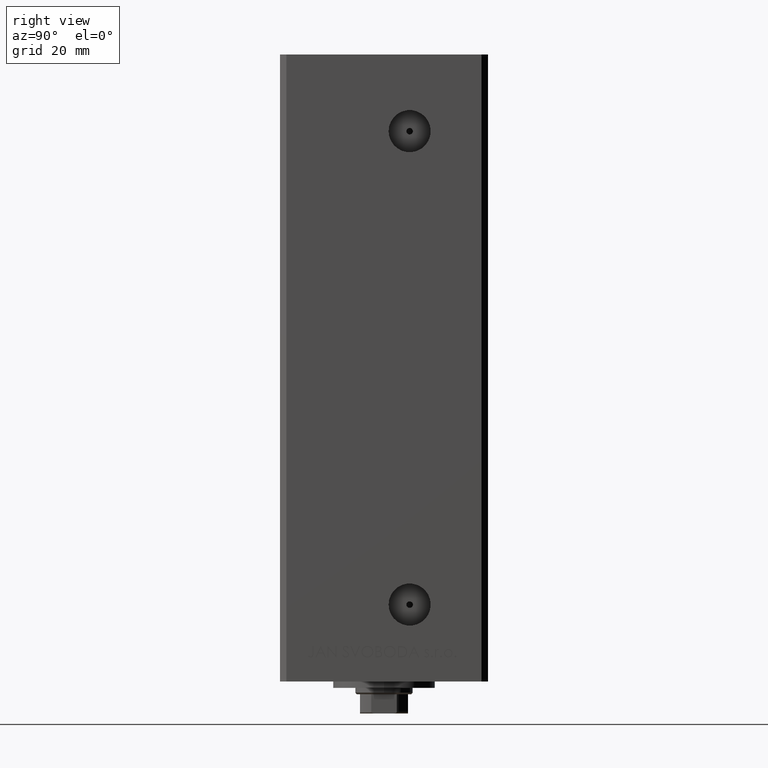
[diagram: clean part render]
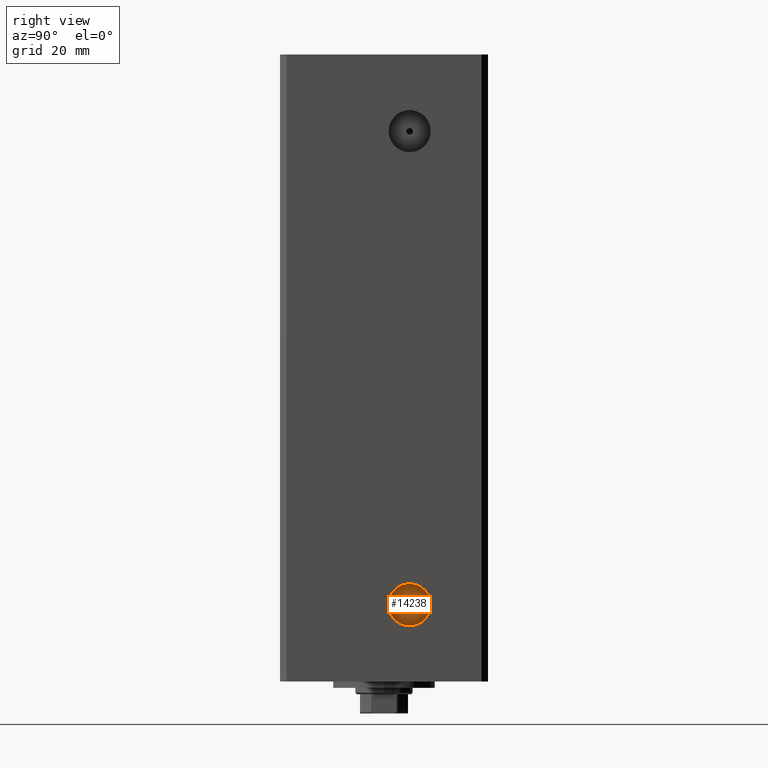
[diagram: same view with one face highlighted and labeled with its STEP entity id]
A machine part, right view. The second image highlights one B-rep face of the part: STEP entity #14238.
In plain terms, the highlighted planar face has unit normal (1, -0, 0).
Its self-contained STEP definition (entity closure, byte-faithful):
#695 = DIRECTION ( 'NONE',  ( 2.275047181608927644E-16, 1.000000000000000000, 0.000000000000000000 ) ) ;
#925 = ORIENTED_EDGE ( 'NONE', *, *, #30218, .F. ) ;
#1268 = CIRCLE ( 'NONE', #12423, 0.9999999999999991118 ) ;
#3588 = CIRCLE ( 'NONE', #34645, 6.580000000000006288 ) ;
#3818 = CARTESIAN_POINT ( 'NONE',  ( 24.50000000000000000, 7.999999999999994671, 8.999999999999994671 ) ) ;
#4438 = FACE_BOUND ( 'NONE', #41624, .T. ) ;
#5140 = EDGE_CURVE ( 'NONE', #17042, #47565, #3588, .T. ) ;
#5256 = DIRECTION ( 'NONE',  ( 0.000000000000000000, 1.000000000000000000, 0.000000000000000000 ) ) ;
#5563 = ORIENTED_EDGE ( 'NONE', *, *, #7083, .F. ) ;
#6014 = CARTESIAN_POINT ( 'NONE',  ( 24.50000000000000000, 1.419999999999989049, 8.999999999999994671 ) ) ;
#7083 = EDGE_CURVE ( 'NONE', #16908, #16668, #1268, .T. ) ;
#8767 = CARTESIAN_POINT ( 'NONE',  ( 24.50000000000000000, 7.999999999999994671, 8.999999999999994671 ) ) ;
#9008 = DIRECTION ( 'NONE',  ( 1.000000000000000000, -2.275047181608927644E-16, 0.000000000000000000 ) ) ;
#11657 = EDGE_CURVE ( 'NONE', #47565, #17042, #19753, .T. ) ;
#12423 = AXIS2_PLACEMENT_3D ( 'NONE', #8767, #9008, #5256 ) ;
#13872 = DIRECTION ( 'NONE',  ( 1.000000000000000000, -2.275047181608927644E-16, 0.000000000000000000 ) ) ;
#14238 = ADVANCED_FACE ( 'NONE', ( #4438, #16157 ), #46063, .T. ) ;
#16157 = FACE_OUTER_BOUND ( 'NONE', #18353, .T. ) ;
#16668 = VERTEX_POINT ( 'NONE', #18530 ) ;
#16908 = VERTEX_POINT ( 'NONE', #27233 ) ;
#17042 = VERTEX_POINT ( 'NONE', #6014 ) ;
#18316 = DIRECTION ( 'NONE',  ( 1.000000000000000000, -2.275047181608927644E-16, 0.000000000000000000 ) ) ;
#18353 = EDGE_LOOP ( 'NONE', ( #31073, #20913 ) ) ;
#18530 = CARTESIAN_POINT ( 'NONE',  ( 24.50000000000000000, 6.999999999999994671, 8.999999999999994671 ) ) ;
#19656 = DIRECTION ( 'NONE',  ( 1.000000000000000000, -2.275047181608927644E-16, 0.000000000000000000 ) ) ;
#19753 = CIRCLE ( 'NONE', #20533, 6.580000000000006288 ) ;
#19923 = DIRECTION ( 'NONE',  ( 0.000000000000000000, 1.000000000000000000, 0.000000000000000000 ) ) ;
#20533 = AXIS2_PLACEMENT_3D ( 'NONE', #35105, #23638, #19923 ) ;
#20913 = ORIENTED_EDGE ( 'NONE', *, *, #5140, .T. ) ;
#22776 = DIRECTION ( 'NONE',  ( 0.000000000000000000, 1.000000000000000000, 0.000000000000000000 ) ) ;
#23638 = DIRECTION ( 'NONE',  ( 1.000000000000000000, -2.275047181608927644E-16, 0.000000000000000000 ) ) ;
#27233 = CARTESIAN_POINT ( 'NONE',  ( 24.50000000000000000, 8.999999999999994671, 8.999999999999994671 ) ) ;
#27291 = CIRCLE ( 'NONE', #28049, 0.9999999999999991118 ) ;
#28049 = AXIS2_PLACEMENT_3D ( 'NONE', #33546, #13872, #40278 ) ;
#28597 = CARTESIAN_POINT ( 'NONE',  ( 24.50000000000000000, 14.58000000000000007, 8.999999999999994671 ) ) ;
#30218 = EDGE_CURVE ( 'NONE', #16668, #16908, #27291, .T. ) ;
#31073 = ORIENTED_EDGE ( 'NONE', *, *, #11657, .T. ) ;
#31758 = AXIS2_PLACEMENT_3D ( 'NONE', #45814, #19656, #695 ) ;
#33546 = CARTESIAN_POINT ( 'NONE',  ( 24.50000000000000000, 7.999999999999994671, 8.999999999999994671 ) ) ;
#34645 = AXIS2_PLACEMENT_3D ( 'NONE', #3818, #18316, #22776 ) ;
#35105 = CARTESIAN_POINT ( 'NONE',  ( 24.50000000000000000, 7.999999999999994671, 8.999999999999994671 ) ) ;
#40278 = DIRECTION ( 'NONE',  ( 0.000000000000000000, 1.000000000000000000, 0.000000000000000000 ) ) ;
#41624 = EDGE_LOOP ( 'NONE', ( #5563, #925 ) ) ;
#45814 = CARTESIAN_POINT ( 'NONE',  ( 24.50000000000000000, 7.999999999999994671, 8.999999999999994671 ) ) ;
#46063 = PLANE ( 'NONE',  #31758 ) ;
#47565 = VERTEX_POINT ( 'NONE', #28597 ) ;